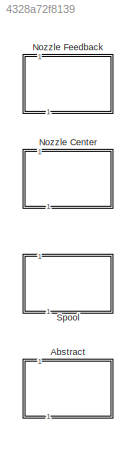
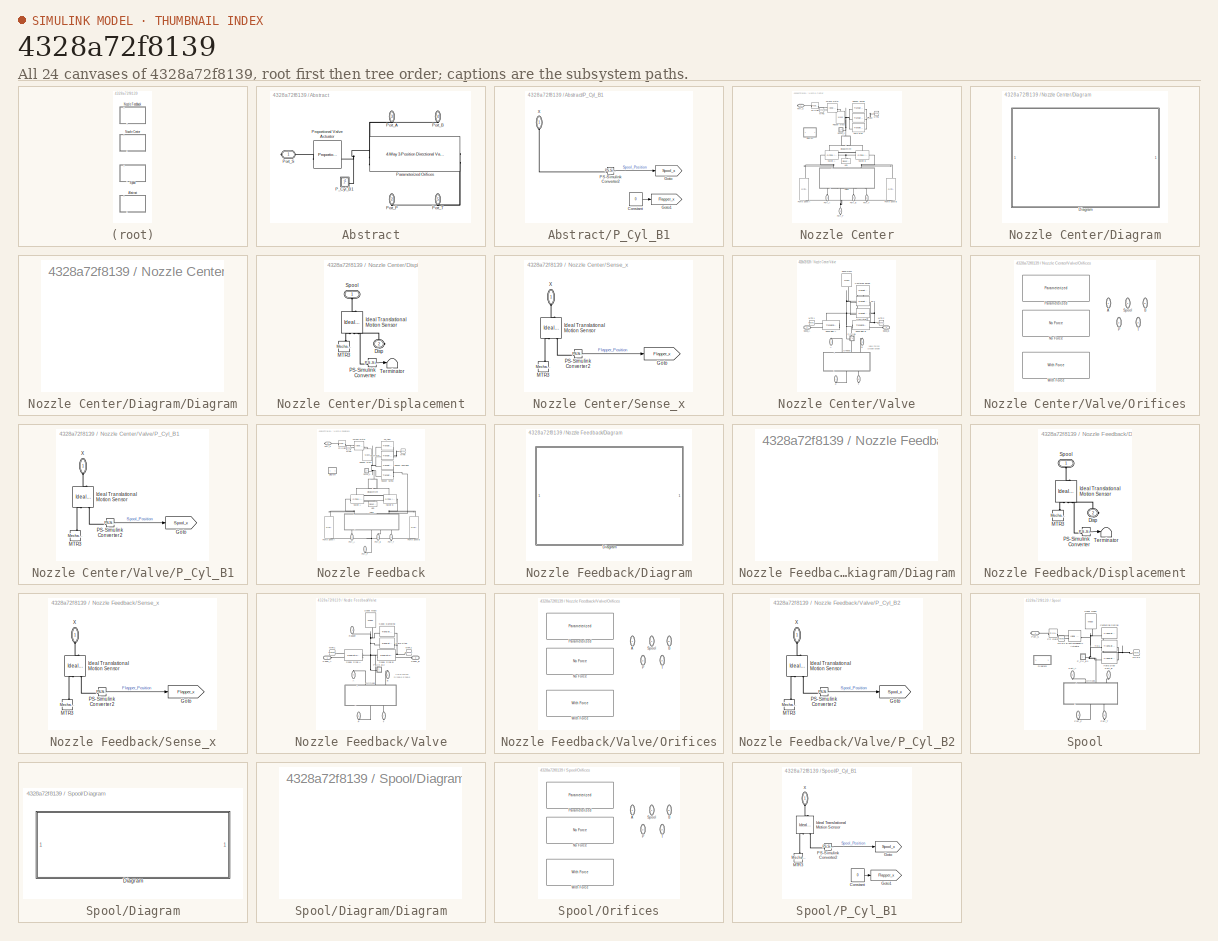
[diagram: thumbnail index - all 24 canvases of the model, root first then tree order]
MODEL slx_4328a72f8139
KIND library
CONFIG SolverName = ode45
BLOCK [SubSystem] Abstract
  NameLocation = left
BLOCK [SubSystem] Abstract/P_Cyl_B1
BLOCK [Constant] Abstract/P_Cyl_B1/Constant
  Value = 0
BLOCK [Goto] Abstract/P_Cyl_B1/Goto
  GotoTag = Spool_x
  NameLocation = top
  TagVisibility = global
BLOCK [Goto] Abstract/P_Cyl_B1/Goto1
  GotoTag = Flapper_x
  TagVisibility = global
BLOCK [Reference] Abstract/P_Cyl_B1/PS-Simulink Converter2  REF=nesl_utility/PS-Simulink
Converter
  NameLocation = top
  SourceBlock = nesl_utility/PS-Simulink\nConverter
  SourceType = PS-Simulink\nConverter
BLOCK [PMIOPort] Abstract/P_Cyl_B1/X
  NameLocation = right
  Side = Left
BLOCK [Reference] Abstract/Parameterized Orifices  REF=SimscapeFluids_lib/Isothermal Liquid/Valves & Orifices/Directional Control
Valves/4-Way 3-Position
Directional Valve
(IL)
  LibrarySourceBlock = sh_lib/Valves/Directional Valves/4-Way Directional\nValve
  SourceBlock = SimscapeFluids_lib/Isothermal Liquid/Valves & Orifices/Directional Control\nValves/4-Way 3-Position\nDirectional Valve\n(IL)
  SourceType = 4-Way 3-Position\nDirectional Valve\n(IL)
BLOCK [PMIOPort] Abstract/Port_A
  NameLocation = right
  Port = 3
  Side = Left
BLOCK [PMIOPort] Abstract/Port_B
  NameLocation = right
  Port = 4
  Side = Left
BLOCK [PMIOPort] Abstract/Port_P
  NameLocation = left
  Port = 2
  Side = Right
BLOCK [PMIOPort] Abstract/Port_S
  Side = Right
BLOCK [PMIOPort] Abstract/Port_T
  NameLocation = left
  Port = 5
  Side = Right
BLOCK [Reference] Abstract/Proportional Valve Actuator  REF=SimscapeFluids_lib/Valve Actuators/Proportional Valve
Actuator
  SourceBlock = SimscapeFluids_lib/Valve Actuators/Proportional Valve\nActuator
  SourceType = Proportional Valve\nActuator
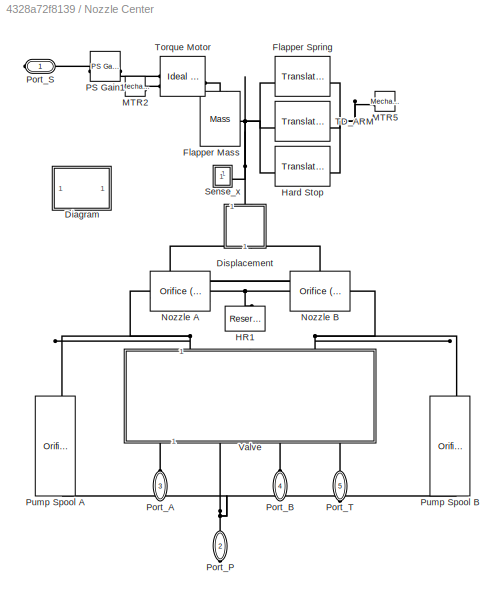
BLOCK [SubSystem] Nozzle Center
  NameLocation = left
  ShowPortLabels = FromPortBlockName
BLOCK [SubSystem] Nozzle Center/Diagram
BLOCK [SubSystem] Nozzle Center/Diagram/Diagram
BLOCK [SubSystem] Nozzle Center/Displacement
  NameLocation = left
BLOCK [PMIOPort] Nozzle Center/Displacement/Disp
  NameLocation = top
  Port = 2
  Side = Right
BLOCK [Reference] Nozzle Center/Displacement/Ideal Translational Motion Sensor  REF=fl_lib/Mechanical/Mechanical Sensors/Ideal Translational
Motion Sensor
  NameLocation = left
  SourceBlock = fl_lib/Mechanical/Mechanical Sensors/Ideal Translational\nMotion Sensor
  SourceType = Ideal Translational\nMotion Sensor
  Tag = Factory Generic
BLOCK [Reference] Nozzle Center/Displacement/MTR3  REF=fl_lib/Mechanical/Translational
Elements/Mechanical
Translational
Reference
  NameLocation = left
  SourceBlock = fl_lib/Mechanical/Translational\nElements/Mechanical\nTranslational\nReference
  SourceType = Mechanical\nTranslational\nReference
  Tag = Factory Generic
BLOCK [Reference] Nozzle Center/Displacement/PS-Simulink Converter  REF=nesl_utility/PS-Simulink
Converter
  SourceBlock = nesl_utility/PS-Simulink\nConverter
  SourceType = PS-Simulink\nConverter
BLOCK [PMIOPort] Nozzle Center/Displacement/Spool
  NameLocation = right
  Side = Left
BLOCK [Terminator] Nozzle Center/Displacement/Terminator
BLOCK [Reference] Nozzle Center/Flapper Mass  REF=fl_lib/Mechanical/Translational
Elements/Mass
  NameLocation = left
  SourceBlock = fl_lib/Mechanical/Translational\nElements/Mass
  SourceType = Mass
  Tag = Factory Generic
BLOCK [Reference] Nozzle Center/Flapper Spring  REF=fl_lib/Mechanical/Translational
Elements/Translational Spring
  NameLocation = top
  SourceBlock = fl_lib/Mechanical/Translational\nElements/Translational Spring
  SourceType = Translational Spring
  Tag = Factory Generic
BLOCK [Reference] Nozzle Center/HR1  REF=fl_lib/Isothermal Liquid/Elements/Reservoir (IL)
  LibrarySourceBlock = fl_lib/Hydraulic/Hydraulic Elements/Hydraulic Reference
  NameLocation = right
  SourceBlock = fl_lib/Isothermal Liquid/Elements/Reservoir (IL)
  SourceType = Reservoir (IL)
  Tag = Factory Generic
BLOCK [Reference] Nozzle Center/Hard Stop  REF=fl_lib/Mechanical/Translational
Elements/Translational Hard
Stop
  SourceBlock = fl_lib/Mechanical/Translational\nElements/Translational Hard\nStop
  SourceType = Translational Hard\nStop
  Tag = Factory Generic
BLOCK [Reference] Nozzle Center/MTR2  REF=fl_lib/Mechanical/Translational
Elements/Mechanical
Translational
Reference
  SourceBlock = fl_lib/Mechanical/Translational\nElements/Mechanical\nTranslational\nReference
  SourceType = Mechanical\nTranslational\nReference
  Tag = Factory Generic
BLOCK [Reference] Nozzle Center/MTR5  REF=fl_lib/Mechanical/Translational
Elements/Mechanical
Translational
Reference
  NameLocation = top
  SourceBlock = fl_lib/Mechanical/Translational\nElements/Mechanical\nTranslational\nReference
  SourceType = Mechanical\nTranslational\nReference
  Tag = Factory Generic
BLOCK [Reference] Nozzle Center/Nozzle A  REF=SimscapeFluids_lib/Isothermal Liquid/Valves & Orifices/Orifices/Orifice (IL)
  LibrarySourceBlock = sh_lib/Orifices/Variable Orifice
  SourceBlock = SimscapeFluids_lib/Isothermal Liquid/Valves & Orifices/Orifices/Orifice (IL)
  SourceType = Orifice (IL)
  Tag = Factory Generic
BLOCK [Reference] Nozzle Center/Nozzle B  REF=SimscapeFluids_lib/Isothermal Liquid/Valves & Orifices/Orifices/Orifice (IL)
  LibrarySourceBlock = sh_lib/Orifices/Variable Orifice
  SourceBlock = SimscapeFluids_lib/Isothermal Liquid/Valves & Orifices/Orifices/Orifice (IL)
  SourceType = Orifice (IL)
  Tag = Factory Generic
BLOCK [Reference] Nozzle Center/PS Gain1  REF=fl_lib/Physical Signals/Functions/PS Gain
  SourceBlock = fl_lib/Physical Signals/Functions/PS Gain
  SourceType = PS Gain
BLOCK [PMIOPort] Nozzle Center/Port_A
  NameLocation = right
  Port = 3
  Side = Left
BLOCK [PMIOPort] Nozzle Center/Port_B
  NameLocation = left
  Port = 4
  Side = Left
BLOCK [PMIOPort] Nozzle Center/Port_P
  NameLocation = right
  Port = 2
  Side = Right
BLOCK [PMIOPort] Nozzle Center/Port_S
  Side = Right
BLOCK [PMIOPort] Nozzle Center/Port_T
  NameLocation = right
  Port = 5
  Side = Right
BLOCK [Reference] Nozzle Center/Pump Spool A   REF=SimscapeFluids_lib/Isothermal Liquid/Valves & Orifices/Orifices/Orifice (IL)
  LibrarySourceBlock = sh_lib/Orifices/Fixed Orifice
  NameLocation = right
  SourceBlock = SimscapeFluids_lib/Isothermal Liquid/Valves & Orifices/Orifices/Orifice (IL)
  SourceType = Orifice (IL)
  Tag = Factory Generic
BLOCK [Reference] Nozzle Center/Pump Spool B  REF=SimscapeFluids_lib/Isothermal Liquid/Valves & Orifices/Orifices/Orifice (IL)
  LibrarySourceBlock = sh_lib/Orifices/Fixed Orifice
  NameLocation = left
  SourceBlock = SimscapeFluids_lib/Isothermal Liquid/Valves & Orifices/Orifices/Orifice (IL)
  SourceType = Orifice (IL)
  Tag = Factory Generic
BLOCK [SubSystem] Nozzle Center/Sense_x
BLOCK [Goto] Nozzle Center/Sense_x/Goto
  GotoTag = Flapper_x
  NameLocation = top
  TagVisibility = global
BLOCK [Reference] Nozzle Center/Sense_x/Ideal Translational Motion Sensor  REF=fl_lib/Mechanical/Mechanical Sensors/Ideal Translational
Motion Sensor
  NameLocation = right
  SourceBlock = fl_lib/Mechanical/Mechanical Sensors/Ideal Translational\nMotion Sensor
  SourceType = Ideal Translational\nMotion Sensor
  Tag = Factory Generic
BLOCK [Reference] Nozzle Center/Sense_x/MTR3  REF=fl_lib/Mechanical/Translational
Elements/Mechanical
Translational
Reference
  NameLocation = right
  SourceBlock = fl_lib/Mechanical/Translational\nElements/Mechanical\nTranslational\nReference
  SourceType = Mechanical\nTranslational\nReference
  Tag = Factory Generic
BLOCK [Reference] Nozzle Center/Sense_x/PS-Simulink Converter2  REF=nesl_utility/PS-Simulink
Converter
  NameLocation = top
  SourceBlock = nesl_utility/PS-Simulink\nConverter
  SourceType = PS-Simulink\nConverter
BLOCK [PMIOPort] Nozzle Center/Sense_x/X
  NameLocation = right
  Side = Left
BLOCK [Reference] Nozzle Center/TD_ARM  REF=fl_lib/Mechanical/Translational
Elements/Translational Damper
  SourceBlock = fl_lib/Mechanical/Translational\nElements/Translational Damper
  SourceType = Translational Damper
  Tag = Factory Generic
BLOCK [Reference] Nozzle Center/Torque Motor  REF=fl_lib/Mechanical/Mechanical Sources/Ideal Force Source
  NameLocation = top
  SourceBlock = fl_lib/Mechanical/Mechanical Sources/Ideal Force Source
  SourceType = Ideal Force Source
  Tag = Factory Generic
BLOCK [SubSystem] Nozzle Center/Valve
  NameLocation = left
  ShowPortLabels = FromPortBlockName
BLOCK [PMIOPort] Nozzle Center/Valve/A
  NameLocation = left
  Port = 3
  Side = Right
BLOCK [PMIOPort] Nozzle Center/Valve/B
  NameLocation = left
  Port = 5
  Side = Right
BLOCK [Reference] Nozzle Center/Valve/Centering Spring  REF=fl_lib/Mechanical/Translational
Elements/Translational Spring
  NameLocation = top
  SourceBlock = fl_lib/Mechanical/Translational\nElements/Translational Spring
  SourceType = Translational Spring
  Tag = Factory Generic
BLOCK [Reference] Nozzle Center/Valve/Hard Stop  REF=fl_lib/Mechanical/Translational
Elements/Translational Hard
Stop
  NameLocation = top
  SourceBlock = fl_lib/Mechanical/Translational\nElements/Translational Hard\nStop
  SourceType = Translational Hard\nStop
  Tag = Factory Generic
BLOCK [Reference] Nozzle Center/Valve/MTR1  REF=fl_lib/Mechanical/Translational
Elements/Mechanical
Translational
Reference
  SourceBlock = fl_lib/Mechanical/Translational\nElements/Mechanical\nTranslational\nReference
  SourceType = Mechanical\nTranslational\nReference
  Tag = Factory Generic
BLOCK [Reference] Nozzle Center/Valve/MTR2  REF=fl_lib/Mechanical/Translational
Elements/Mechanical
Translational
Reference
  NameLocation = top
  SourceBlock = fl_lib/Mechanical/Translational\nElements/Mechanical\nTranslational\nReference
  SourceType = Mechanical\nTranslational\nReference
  Tag = Factory Generic
BLOCK [SubSystem] Nozzle Center/Valve/Orifices
  AttributesFormatString = %<ActiveVariant>
  LabelModeActiveChoice = No_Force
  NameLocation = right
  Variant = on
  VariantControlMode = label
BLOCK [PMIOPort] Nozzle Center/Valve/Orifices/A
  NameLocation = left
  Side = Right
BLOCK [PMIOPort] Nozzle Center/Valve/Orifices/B
  NameLocation = left
  Port = 5
  Side = Right
BLOCK [Reference] Nozzle Center/Valve/Orifices/No Force  REF=Custom_Valve_Orifices_Lib/No
Force
  NameLocation = right
  SourceBlock = Custom_Valve_Orifices_Lib/No\nForce
  SourceType = Valve Orifices
BLOCK [PMIOPort] Nozzle Center/Valve/Orifices/P
  NameLocation = right
  Port = 2
  Side = Left
BLOCK [Reference] Nozzle Center/Valve/Orifices/Parameterized  REF=Custom_Valve_Orifices_Lib/Parameterized
  NameLocation = right
  SourceBlock = Custom_Valve_Orifices_Lib/Parameterized
  SourceType = Valve Orifices
BLOCK [PMIOPort] Nozzle Center/Valve/Orifices/Spool
  NameLocation = left
  Port = 4
  Side = Right
BLOCK [PMIOPort] Nozzle Center/Valve/Orifices/T
  NameLocation = right
  Port = 3
  Side = Left
BLOCK [Reference] Nozzle Center/Valve/Orifices/With Force  REF=Custom_Valve_Orifices_Lib/With
Force
  NameLocation = right
  SourceBlock = Custom_Valve_Orifices_Lib/With\nForce
  SourceType = Valve Orifices, Forces
BLOCK [PMIOPort] Nozzle Center/Valve/P
  NameLocation = right
  Port = 4
  Side = Right
BLOCK [SubSystem] Nozzle Center/Valve/P_Cyl_B1
BLOCK [Goto] Nozzle Center/Valve/P_Cyl_B1/Goto
  GotoTag = Spool_x
  NameLocation = top
  TagVisibility = global
BLOCK [Reference] Nozzle Center/Valve/P_Cyl_B1/Ideal Translational Motion Sensor  REF=fl_lib/Mechanical/Mechanical Sensors/Ideal Translational
Motion Sensor
  NameLocation = right
  SourceBlock = fl_lib/Mechanical/Mechanical Sensors/Ideal Translational\nMotion Sensor
  SourceType = Ideal Translational\nMotion Sensor
  Tag = Factory Generic
BLOCK [Reference] Nozzle Center/Valve/P_Cyl_B1/MTR3  REF=fl_lib/Mechanical/Translational
Elements/Mechanical
Translational
Reference
  NameLocation = right
  SourceBlock = fl_lib/Mechanical/Translational\nElements/Mechanical\nTranslational\nReference
  SourceType = Mechanical\nTranslational\nReference
  Tag = Factory Generic
BLOCK [Reference] Nozzle Center/Valve/P_Cyl_B1/PS-Simulink Converter2  REF=nesl_utility/PS-Simulink
Converter
  NameLocation = top
  SourceBlock = nesl_utility/PS-Simulink\nConverter
  SourceType = PS-Simulink\nConverter
BLOCK [PMIOPort] Nozzle Center/Valve/P_Cyl_B1/X
  NameLocation = right
  Side = Left
BLOCK [Reference] Nozzle Center/Valve/Spool Mass  REF=fl_lib/Mechanical/Translational
Elements/Mass
  NameLocation = left
  SourceBlock = fl_lib/Mechanical/Translational\nElements/Mass
  SourceType = Mass
  Tag = Factory Generic
BLOCK [Reference] Nozzle Center/Valve/Spool Side A  REF=fl_lib/Isothermal Liquid/Elements/Translational
Mechanical Converter
(IL)
  LibrarySourceBlock = fl_lib/Hydraulic/Hydraulic Elements/Translational\nHydro-Mechanical\nConverter
  SourceBlock = fl_lib/Isothermal Liquid/Elements/Translational\nMechanical Converter\n(IL)
  SourceType = Translational\nMechanical Converter\n(IL)
  Tag = Factory Generic
BLOCK [Reference] Nozzle Center/Valve/Spool Side B  REF=fl_lib/Isothermal Liquid/Elements/Translational
Mechanical Converter
(IL)
  LibrarySourceBlock = fl_lib/Hydraulic/Hydraulic Elements/Translational\nHydro-Mechanical\nConverter
  SourceBlock = fl_lib/Isothermal Liquid/Elements/Translational\nMechanical Converter\n(IL)
  SourceType = Translational\nMechanical Converter\n(IL)
  Tag = Factory Generic
BLOCK [PMIOPort] Nozzle Center/Valve/Spool_A
  Side = Left
BLOCK [PMIOPort] Nozzle Center/Valve/Spool_B
  Port = 2
  Side = Left
BLOCK [PMIOPort] Nozzle Center/Valve/T
  NameLocation = left
  Port = 6
  Side = Right
BLOCK [Reference] Nozzle Center/Valve/TD1  REF=fl_lib/Mechanical/Translational
Elements/Translational Damper
  SourceBlock = fl_lib/Mechanical/Translational\nElements/Translational Damper
  SourceType = Translational Damper
  Tag = Factory Generic
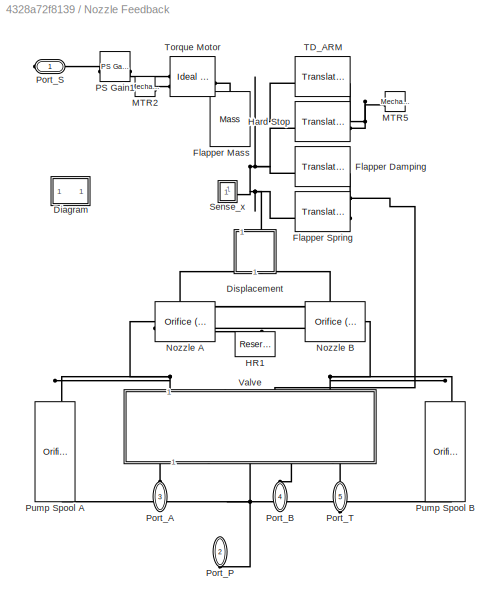
BLOCK [SubSystem] Nozzle Feedback
  NameLocation = left
  ShowPortLabels = FromPortBlockName
BLOCK [SubSystem] Nozzle Feedback/Diagram
BLOCK [SubSystem] Nozzle Feedback/Diagram/Diagram
BLOCK [SubSystem] Nozzle Feedback/Displacement
  NameLocation = left
BLOCK [PMIOPort] Nozzle Feedback/Displacement/Disp
  NameLocation = top
  Port = 2
  Side = Right
BLOCK [Reference] Nozzle Feedback/Displacement/Ideal Translational Motion Sensor  REF=fl_lib/Mechanical/Mechanical Sensors/Ideal Translational
Motion Sensor
  NameLocation = left
  SourceBlock = fl_lib/Mechanical/Mechanical Sensors/Ideal Translational\nMotion Sensor
  SourceType = Ideal Translational\nMotion Sensor
  Tag = Factory Generic
BLOCK [Reference] Nozzle Feedback/Displacement/MTR3  REF=fl_lib/Mechanical/Translational
Elements/Mechanical
Translational
Reference
  NameLocation = left
  SourceBlock = fl_lib/Mechanical/Translational\nElements/Mechanical\nTranslational\nReference
  SourceType = Mechanical\nTranslational\nReference
  Tag = Factory Generic
BLOCK [Reference] Nozzle Feedback/Displacement/PS-Simulink Converter  REF=nesl_utility/PS-Simulink
Converter
  SourceBlock = nesl_utility/PS-Simulink\nConverter
  SourceType = PS-Simulink\nConverter
BLOCK [PMIOPort] Nozzle Feedback/Displacement/Spool
  NameLocation = right
  Side = Left
BLOCK [Terminator] Nozzle Feedback/Displacement/Terminator
BLOCK [Reference] Nozzle Feedback/Flapper Damping  REF=fl_lib/Mechanical/Translational
Elements/Translational Damper
  SourceBlock = fl_lib/Mechanical/Translational\nElements/Translational Damper
  SourceType = Translational Damper
  Tag = Factory Generic
BLOCK [Reference] Nozzle Feedback/Flapper Mass  REF=fl_lib/Mechanical/Translational
Elements/Mass
  NameLocation = left
  SourceBlock = fl_lib/Mechanical/Translational\nElements/Mass
  SourceType = Mass
  Tag = Factory Generic
BLOCK [Reference] Nozzle Feedback/Flapper Spring  REF=fl_lib/Mechanical/Translational
Elements/Translational Spring
  SourceBlock = fl_lib/Mechanical/Translational\nElements/Translational Spring
  SourceType = Translational Spring
  Tag = Factory Generic
BLOCK [Reference] Nozzle Feedback/HR1  REF=fl_lib/Isothermal Liquid/Elements/Reservoir (IL)
  LibrarySourceBlock = fl_lib/Hydraulic/Hydraulic Elements/Hydraulic Reference
  NameLocation = right
  SourceBlock = fl_lib/Isothermal Liquid/Elements/Reservoir (IL)
  SourceType = Reservoir (IL)
  Tag = Factory Generic
BLOCK [Reference] Nozzle Feedback/Hard Stop  REF=fl_lib/Mechanical/Translational
Elements/Translational Hard
Stop
  SourceBlock = fl_lib/Mechanical/Translational\nElements/Translational Hard\nStop
  SourceType = Translational Hard\nStop
  Tag = Factory Generic
BLOCK [Reference] Nozzle Feedback/MTR2  REF=fl_lib/Mechanical/Translational
Elements/Mechanical
Translational
Reference
  SourceBlock = fl_lib/Mechanical/Translational\nElements/Mechanical\nTranslational\nReference
  SourceType = Mechanical\nTranslational\nReference
  Tag = Factory Generic
BLOCK [Reference] Nozzle Feedback/MTR5  REF=fl_lib/Mechanical/Translational
Elements/Mechanical
Translational
Reference
  NameLocation = top
  SourceBlock = fl_lib/Mechanical/Translational\nElements/Mechanical\nTranslational\nReference
  SourceType = Mechanical\nTranslational\nReference
  Tag = Factory Generic
BLOCK [Reference] Nozzle Feedback/Nozzle A  REF=SimscapeFluids_lib/Isothermal Liquid/Valves & Orifices/Orifices/Orifice (IL)
  LibrarySourceBlock = sh_lib/Orifices/Variable Orifice
  SourceBlock = SimscapeFluids_lib/Isothermal Liquid/Valves & Orifices/Orifices/Orifice (IL)
  SourceType = Orifice (IL)
  Tag = Factory Generic
BLOCK [Reference] Nozzle Feedback/Nozzle B  REF=SimscapeFluids_lib/Isothermal Liquid/Valves & Orifices/Orifices/Orifice (IL)
  LibrarySourceBlock = sh_lib/Orifices/Variable Orifice
  SourceBlock = SimscapeFluids_lib/Isothermal Liquid/Valves & Orifices/Orifices/Orifice (IL)
  SourceType = Orifice (IL)
  Tag = Factory Generic
BLOCK [Reference] Nozzle Feedback/PS Gain1  REF=fl_lib/Physical Signals/Functions/PS Gain
  SourceBlock = fl_lib/Physical Signals/Functions/PS Gain
  SourceType = PS Gain
BLOCK [PMIOPort] Nozzle Feedback/Port_A
  NameLocation = right
  Port = 3
  Side = Left
BLOCK [PMIOPort] Nozzle Feedback/Port_B
  NameLocation = left
  Port = 4
  Side = Left
BLOCK [PMIOPort] Nozzle Feedback/Port_P
  NameLocation = right
  Port = 2
  Side = Right
BLOCK [PMIOPort] Nozzle Feedback/Port_S
  Side = Right
BLOCK [PMIOPort] Nozzle Feedback/Port_T
  NameLocation = right
  Port = 5
  Side = Right
BLOCK [Reference] Nozzle Feedback/Pump Spool A   REF=SimscapeFluids_lib/Isothermal Liquid/Valves & Orifices/Orifices/Orifice (IL)
  LibrarySourceBlock = sh_lib/Orifices/Fixed Orifice
  NameLocation = right
  SourceBlock = SimscapeFluids_lib/Isothermal Liquid/Valves & Orifices/Orifices/Orifice (IL)
  SourceType = Orifice (IL)
  Tag = Factory Generic
BLOCK [Reference] Nozzle Feedback/Pump Spool B  REF=SimscapeFluids_lib/Isothermal Liquid/Valves & Orifices/Orifices/Orifice (IL)
  LibrarySourceBlock = sh_lib/Orifices/Fixed Orifice
  NameLocation = left
  SourceBlock = SimscapeFluids_lib/Isothermal Liquid/Valves & Orifices/Orifices/Orifice (IL)
  SourceType = Orifice (IL)
  Tag = Factory Generic
BLOCK [SubSystem] Nozzle Feedback/Sense_x
BLOCK [Goto] Nozzle Feedback/Sense_x/Goto
  GotoTag = Flapper_x
  NameLocation = top
  TagVisibility = global
BLOCK [Reference] Nozzle Feedback/Sense_x/Ideal Translational Motion Sensor  REF=fl_lib/Mechanical/Mechanical Sensors/Ideal Translational
Motion Sensor
  NameLocation = right
  SourceBlock = fl_lib/Mechanical/Mechanical Sensors/Ideal Translational\nMotion Sensor
  SourceType = Ideal Translational\nMotion Sensor
  Tag = Factory Generic
BLOCK [Reference] Nozzle Feedback/Sense_x/MTR3  REF=fl_lib/Mechanical/Translational
Elements/Mechanical
Translational
Reference
  NameLocation = right
  SourceBlock = fl_lib/Mechanical/Translational\nElements/Mechanical\nTranslational\nReference
  SourceType = Mechanical\nTranslational\nReference
  Tag = Factory Generic
BLOCK [Reference] Nozzle Feedback/Sense_x/PS-Simulink Converter2  REF=nesl_utility/PS-Simulink
Converter
  NameLocation = top
  SourceBlock = nesl_utility/PS-Simulink\nConverter
  SourceType = PS-Simulink\nConverter
BLOCK [PMIOPort] Nozzle Feedback/Sense_x/X
  NameLocation = right
  Side = Left
BLOCK [Reference] Nozzle Feedback/TD_ARM  REF=fl_lib/Mechanical/Translational
Elements/Translational Damper
  SourceBlock = fl_lib/Mechanical/Translational\nElements/Translational Damper
  SourceType = Translational Damper
  Tag = Factory Generic
BLOCK [Reference] Nozzle Feedback/Torque Motor  REF=fl_lib/Mechanical/Mechanical Sources/Ideal Force Source
  NameLocation = top
  SourceBlock = fl_lib/Mechanical/Mechanical Sources/Ideal Force Source
  SourceType = Ideal Force Source
  Tag = Factory Generic
BLOCK [SubSystem] Nozzle Feedback/Valve
  NameLocation = left
  ShowPortLabels = FromPortBlockName
BLOCK [PMIOPort] Nozzle Feedback/Valve/A
  NameLocation = left
  Port = 4
  Side = Right
BLOCK [PMIOPort] Nozzle Feedback/Valve/B
  NameLocation = left
  Port = 6
  Side = Right
BLOCK [PMIOPort] Nozzle Feedback/Valve/Flapper
  NameLocation = left
  Port = 2
  Side = Left
BLOCK [Reference] Nozzle Feedback/Valve/Hard Stop  REF=fl_lib/Mechanical/Translational
Elements/Translational Hard
Stop
  NameLocation = top
  SourceBlock = fl_lib/Mechanical/Translational\nElements/Translational Hard\nStop
  SourceType = Translational Hard\nStop
  Tag = Factory Generic
BLOCK [Reference] Nozzle Feedback/Valve/MTR1  REF=fl_lib/Mechanical/Translational
Elements/Mechanical
Translational
Reference
  SourceBlock = fl_lib/Mechanical/Translational\nElements/Mechanical\nTranslational\nReference
  SourceType = Mechanical\nTranslational\nReference
  Tag = Factory Generic
BLOCK [Reference] Nozzle Feedback/Valve/MTR2  REF=fl_lib/Mechanical/Translational
Elements/Mechanical
Translational
Reference
  NameLocation = top
  SourceBlock = fl_lib/Mechanical/Translational\nElements/Mechanical\nTranslational\nReference
  SourceType = Mechanical\nTranslational\nReference
  Tag = Factory Generic
BLOCK [SubSystem] Nozzle Feedback/Valve/Orifices
  AttributesFormatString = %<ActiveVariant>
  LabelModeActiveChoice = No_Force
  NameLocation = right
  Variant = on
  VariantControlMode = label
BLOCK [PMIOPort] Nozzle Feedback/Valve/Orifices/A
  NameLocation = left
  Side = Right
BLOCK [PMIOPort] Nozzle Feedback/Valve/Orifices/B
  NameLocation = left
  Port = 5
  Side = Right
BLOCK [Reference] Nozzle Feedback/Valve/Orifices/No Force  REF=Custom_Valve_Orifices_Lib/No
Force
  NameLocation = right
  SourceBlock = Custom_Valve_Orifices_Lib/No\nForce
  SourceType = Valve Orifices
BLOCK [PMIOPort] Nozzle Feedback/Valve/Orifices/P
  NameLocation = right
  Port = 2
  Side = Left
BLOCK [Reference] Nozzle Feedback/Valve/Orifices/Parameterized  REF=Custom_Valve_Orifices_Lib/Parameterized
  NameLocation = right
  SourceBlock = Custom_Valve_Orifices_Lib/Parameterized
  SourceType = Valve Orifices
BLOCK [PMIOPort] Nozzle Feedback/Valve/Orifices/Spool
  NameLocation = left
  Port = 4
  Side = Right
BLOCK [PMIOPort] Nozzle Feedback/Valve/Orifices/T
  NameLocation = right
  Port = 3
  Side = Left
BLOCK [Reference] Nozzle Feedback/Valve/Orifices/With Force  REF=Custom_Valve_Orifices_Lib/With
Force
  NameLocation = right
  SourceBlock = Custom_Valve_Orifices_Lib/With\nForce
  SourceType = Valve Orifices, Forces
BLOCK [PMIOPort] Nozzle Feedback/Valve/P
  NameLocation = right
  Port = 5
  Side = Right
BLOCK [SubSystem] Nozzle Feedback/Valve/P_Cyl_B2
BLOCK [Goto] Nozzle Feedback/Valve/P_Cyl_B2/Goto
  GotoTag = Spool_x
  NameLocation = top
  TagVisibility = global
BLOCK [Reference] Nozzle Feedback/Valve/P_Cyl_B2/Ideal Translational Motion Sensor  REF=fl_lib/Mechanical/Mechanical Sensors/Ideal Translational
Motion Sensor
  NameLocation = right
  SourceBlock = fl_lib/Mechanical/Mechanical Sensors/Ideal Translational\nMotion Sensor
  SourceType = Ideal Translational\nMotion Sensor
  Tag = Factory Generic
BLOCK [Reference] Nozzle Feedback/Valve/P_Cyl_B2/MTR3  REF=fl_lib/Mechanical/Translational
Elements/Mechanical
Translational
Reference
  NameLocation = right
  SourceBlock = fl_lib/Mechanical/Translational\nElements/Mechanical\nTranslational\nReference
  SourceType = Mechanical\nTranslational\nReference
  Tag = Factory Generic
BLOCK [Reference] Nozzle Feedback/Valve/P_Cyl_B2/PS-Simulink Converter2  REF=nesl_utility/PS-Simulink
Converter
  NameLocation = top
  SourceBlock = nesl_utility/PS-Simulink\nConverter
  SourceType = PS-Simulink\nConverter
BLOCK [PMIOPort] Nozzle Feedback/Valve/P_Cyl_B2/X
  NameLocation = right
  Side = Left
BLOCK [Reference] Nozzle Feedback/Valve/Spool Damping  REF=fl_lib/Mechanical/Translational
Elements/Translational Damper
  NameLocation = top
  SourceBlock = fl_lib/Mechanical/Translational\nElements/Translational Damper
  SourceType = Translational Damper
  Tag = Factory Generic
BLOCK [Reference] Nozzle Feedback/Valve/Spool Mass  REF=fl_lib/Mechanical/Translational
Elements/Mass
  NameLocation = left
  SourceBlock = fl_lib/Mechanical/Translational\nElements/Mass
  SourceType = Mass
  Tag = Factory Generic
BLOCK [Reference] Nozzle Feedback/Valve/Spool Side A  REF=fl_lib/Isothermal Liquid/Elements/Translational
Mechanical Converter
(IL)
  LibrarySourceBlock = fl_lib/Hydraulic/Hydraulic Elements/Translational\nHydro-Mechanical\nConverter
  SourceBlock = fl_lib/Isothermal Liquid/Elements/Translational\nMechanical Converter\n(IL)
  SourceType = Translational\nMechanical Converter\n(IL)
  Tag = Factory Generic
BLOCK [Reference] Nozzle Feedback/Valve/Spool Side B  REF=fl_lib/Isothermal Liquid/Elements/Translational
Mechanical Converter
(IL)
  LibrarySourceBlock = fl_lib/Hydraulic/Hydraulic Elements/Translational\nHydro-Mechanical\nConverter
  SourceBlock = fl_lib/Isothermal Liquid/Elements/Translational\nMechanical Converter\n(IL)
  SourceType = Translational\nMechanical Converter\n(IL)
  Tag = Factory Generic
BLOCK [PMIOPort] Nozzle Feedback/Valve/Spool_A
  Side = Left
BLOCK [PMIOPort] Nozzle Feedback/Valve/Spool_B
  Port = 3
  Side = Left
BLOCK [PMIOPort] Nozzle Feedback/Valve/T
  NameLocation = left
  Port = 7
  Side = Right
BLOCK [SubSystem] Spool
  NameLocation = left
  ShowPortLabels = FromPortBlockName
BLOCK [Reference] Spool/Centering Spring  REF=fl_lib/Mechanical/Translational
Elements/Translational Spring
  NameLocation = top
  SourceBlock = fl_lib/Mechanical/Translational\nElements/Translational Spring
  SourceType = Translational Spring
  Tag = Factory Generic
BLOCK [SubSystem] Spool/Diagram
BLOCK [SubSystem] Spool/Diagram/Diagram
BLOCK [Reference] Spool/Electromagnetic Actuator  REF=fl_lib/Mechanical/Mechanical Sources/Ideal Force Source
  SourceBlock = fl_lib/Mechanical/Mechanical Sources/Ideal Force Source
  SourceType = Ideal Force Source
  Tag = Factory Generic
BLOCK [Reference] Spool/Hard Stop  REF=fl_lib/Mechanical/Translational
Elements/Translational Hard
Stop
  NameLocation = top
  SourceBlock = fl_lib/Mechanical/Translational\nElements/Translational Hard\nStop
  SourceType = Translational Hard\nStop
  Tag = Factory Generic
BLOCK [Reference] Spool/MTR2  REF=fl_lib/Mechanical/Translational
Elements/Mechanical
Translational
Reference
  SourceBlock = fl_lib/Mechanical/Translational\nElements/Mechanical\nTranslational\nReference
  SourceType = Mechanical\nTranslational\nReference
  Tag = Factory Generic
BLOCK [Reference] Spool/MTR3  REF=fl_lib/Mechanical/Translational
Elements/Mechanical
Translational
Reference
  NameLocation = top
  SourceBlock = fl_lib/Mechanical/Translational\nElements/Mechanical\nTranslational\nReference
  SourceType = Mechanical\nTranslational\nReference
  Tag = Factory Generic
BLOCK [SubSystem] Spool/Orifices
  AttributesFormatString = %<ActiveVariant>
  LabelModeActiveChoice = No_Force
  NameLocation = right
  Variant = on
  VariantControlMode = label
BLOCK [PMIOPort] Spool/Orifices/A
  NameLocation = left
  Side = Right
BLOCK [PMIOPort] Spool/Orifices/B
  NameLocation = left
  Port = 5
  Side = Right
BLOCK [Reference] Spool/Orifices/No Force  REF=Custom_Valve_Orifices_Lib/No
Force
  NameLocation = right
  SourceBlock = Custom_Valve_Orifices_Lib/No\nForce
  SourceType = Valve Orifices
BLOCK [PMIOPort] Spool/Orifices/P
  NameLocation = right
  Port = 2
  Side = Left
BLOCK [Reference] Spool/Orifices/Parameterized  REF=Custom_Valve_Orifices_Lib/Parameterized
  NameLocation = right
  SourceBlock = Custom_Valve_Orifices_Lib/Parameterized
  SourceType = Valve Orifices
BLOCK [PMIOPort] Spool/Orifices/Spool
  NameLocation = left
  Port = 4
  Side = Right
BLOCK [PMIOPort] Spool/Orifices/T
  NameLocation = right
  Port = 3
  Side = Left
BLOCK [Reference] Spool/Orifices/With Force  REF=Custom_Valve_Orifices_Lib/With
Force
  NameLocation = right
  SourceBlock = Custom_Valve_Orifices_Lib/With\nForce
  SourceType = Valve Orifices, Forces
BLOCK [Reference] Spool/PS Gain1  REF=fl_lib/Physical Signals/Functions/PS Gain
  SourceBlock = fl_lib/Physical Signals/Functions/PS Gain
  SourceType = PS Gain
BLOCK [SubSystem] Spool/P_Cyl_B1
  NameLocation = top
BLOCK [Constant] Spool/P_Cyl_B1/Constant
  Value = 0
BLOCK [Goto] Spool/P_Cyl_B1/Goto
  GotoTag = Spool_x
  NameLocation = top
  TagVisibility = global
BLOCK [Goto] Spool/P_Cyl_B1/Goto1
  GotoTag = Flapper_x
  TagVisibility = global
BLOCK [Reference] Spool/P_Cyl_B1/Ideal Translational Motion Sensor  REF=fl_lib/Mechanical/Mechanical Sensors/Ideal Translational
Motion Sensor
  NameLocation = right
  SourceBlock = fl_lib/Mechanical/Mechanical Sensors/Ideal Translational\nMotion Sensor
  SourceType = Ideal Translational\nMotion Sensor
  Tag = Factory Generic
BLOCK [Reference] Spool/P_Cyl_B1/MTR3  REF=fl_lib/Mechanical/Translational
Elements/Mechanical
Translational
Reference
  NameLocation = right
  SourceBlock = fl_lib/Mechanical/Translational\nElements/Mechanical\nTranslational\nReference
  SourceType = Mechanical\nTranslational\nReference
  Tag = Factory Generic
BLOCK [Reference] Spool/P_Cyl_B1/PS-Simulink Converter2  REF=nesl_utility/PS-Simulink
Converter
  NameLocation = top
  SourceBlock = nesl_utility/PS-Simulink\nConverter
  SourceType = PS-Simulink\nConverter
BLOCK [PMIOPort] Spool/P_Cyl_B1/X
  NameLocation = right
  Side = Left
BLOCK [PMIOPort] Spool/Port_A
  NameLocation = left
  Port = 3
  Side = Left
BLOCK [PMIOPort] Spool/Port_B
  NameLocation = right
  Port = 4
  Side = Left
BLOCK [PMIOPort] Spool/Port_P
  NameLocation = right
  Port = 2
  Side = Right
BLOCK [PMIOPort] Spool/Port_S
  Side = Right
BLOCK [PMIOPort] Spool/Port_T
  NameLocation = right
  Port = 5
  Side = Right
BLOCK [Reference] Spool/Spool Mass  REF=fl_lib/Mechanical/Translational
Elements/Mass
  NameLocation = left
  SourceBlock = fl_lib/Mechanical/Translational\nElements/Mass
  SourceType = Mass
  Tag = Factory Generic
BLOCK [Reference] Spool/TD1  REF=fl_lib/Mechanical/Translational
Elements/Translational Damper
  SourceBlock = fl_lib/Mechanical/Translational\nElements/Translational Damper
  SourceType = Translational Damper
  Tag = Factory Generic
ANNOTATION Nozzle Center/Valve: Valve Forces Disable Enable
ANNOTATION Nozzle Feedback/Valve: Valve Forces Disable Enable
LINE Abstract/P_Cyl_B1/Constant:1 -> Abstract/P_Cyl_B1/Goto1:1
LINE Abstract/P_Cyl_B1/PS-Simulink Converter2:1 -> Abstract/P_Cyl_B1/Goto:1
PLINE Abstract/P_Cyl_B1/PS-Simulink Converter2:LConn1 -- Abstract/P_Cyl_B1/X:RConn1
PNET net1: Abstract/P_Cyl_B1:LConn1 -- Abstract/Parameterized Orifices:LConn1 -- Abstract/Proportional Valve Actuator:RConn1
PLINE Abstract/Parameterized Orifices:LConn2 -- Abstract/Port_A:RConn1
PLINE Abstract/Parameterized Orifices:LConn3 -- Abstract/Port_B:RConn1
PLINE Abstract/Parameterized Orifices:RConn1 -- Abstract/Port_P:RConn1
PLINE Abstract/Parameterized Orifices:RConn2 -- Abstract/Port_T:RConn1
PLINE Abstract/Port_S:RConn1 -- Abstract/Proportional Valve Actuator:LConn1
note: PNET lines group multi-terminal physical nets as a canonical sorted terminal list (undirected conserving connections); 2-terminal nets keep the pairwise PLINE form
